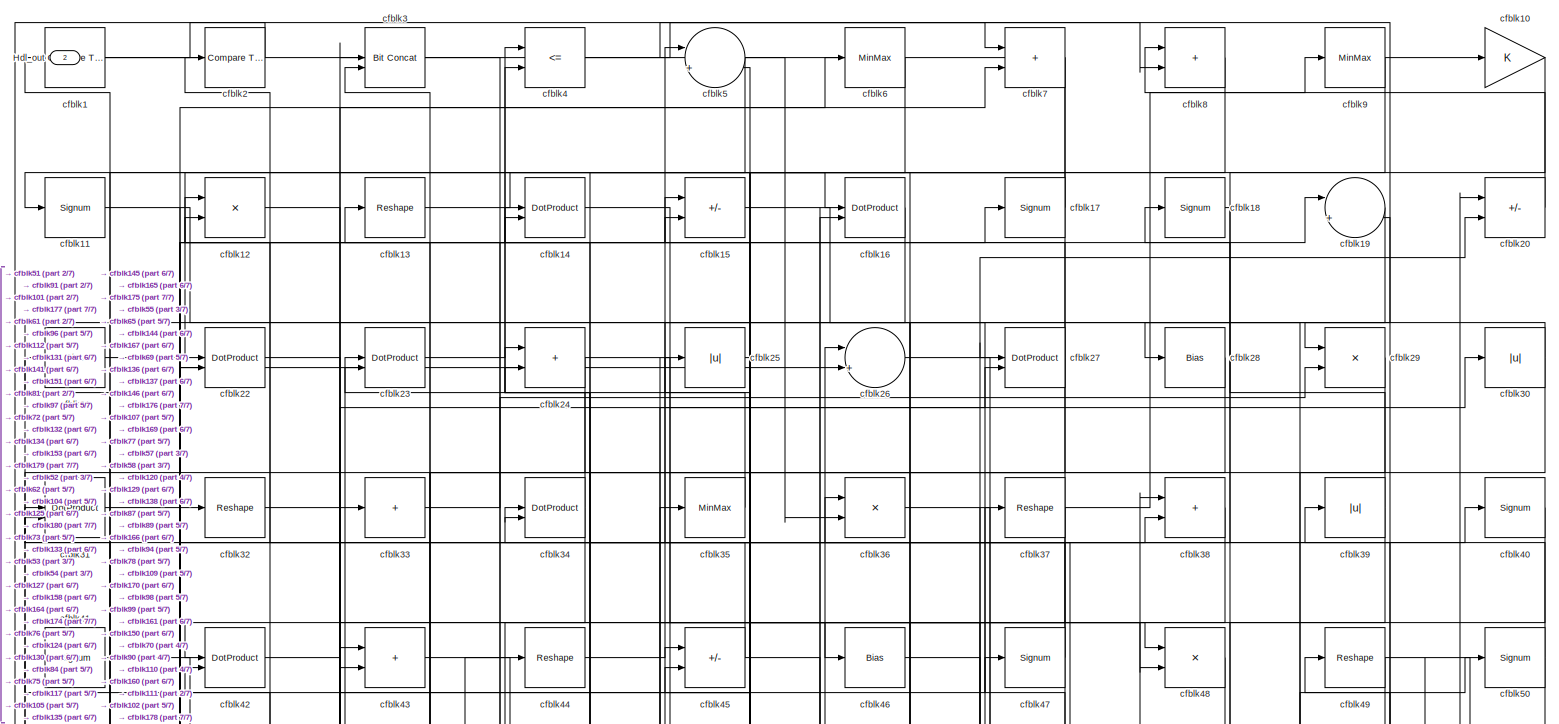
[diagram: root canvas - part 1/7, full width, top band]
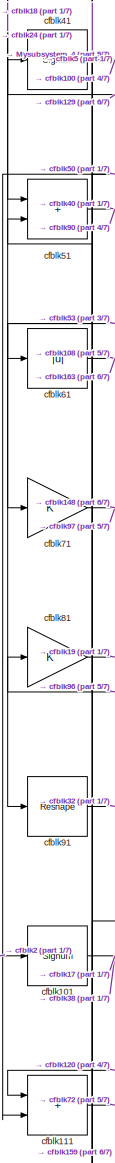
[diagram: root canvas - part 2/7, middle left region]
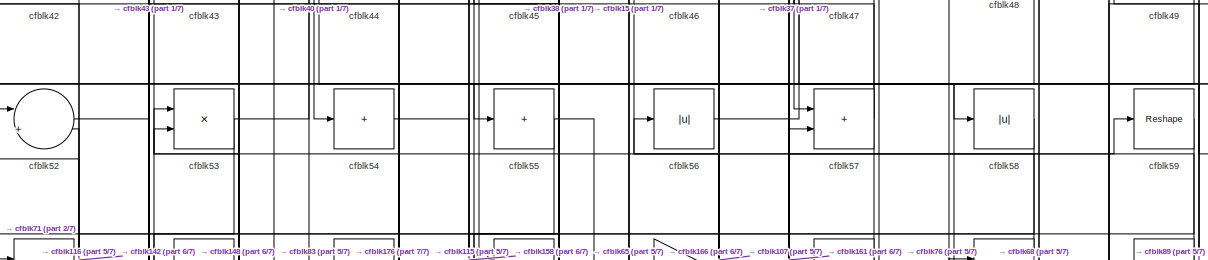
[diagram: root canvas - part 3/7, full width, top band]
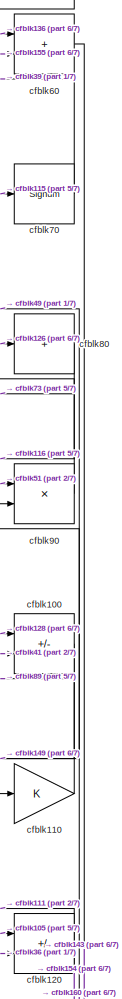
[diagram: root canvas - part 4/7, middle right region]
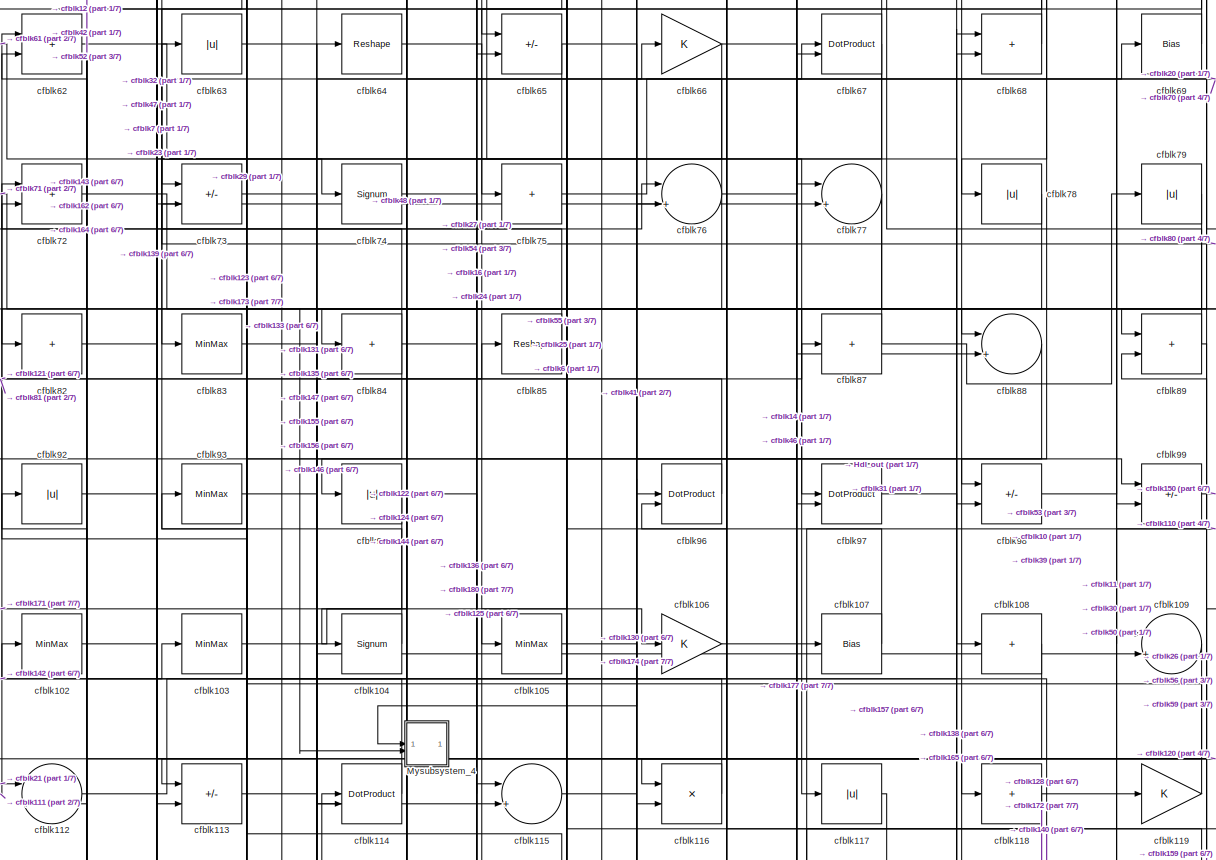
[diagram: root canvas - part 5/7, full width, middle band]
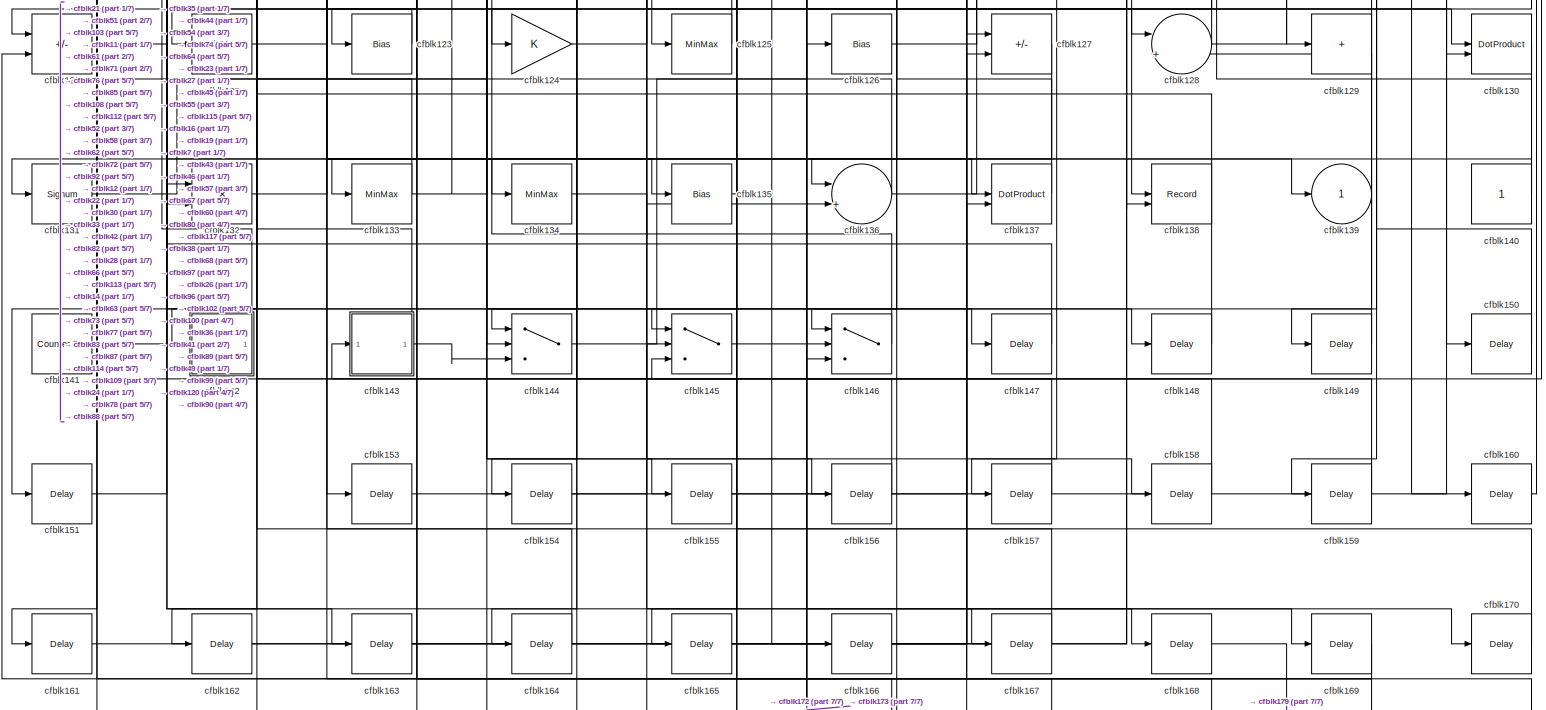
[diagram: root canvas - part 6/7, full width, bottom band]
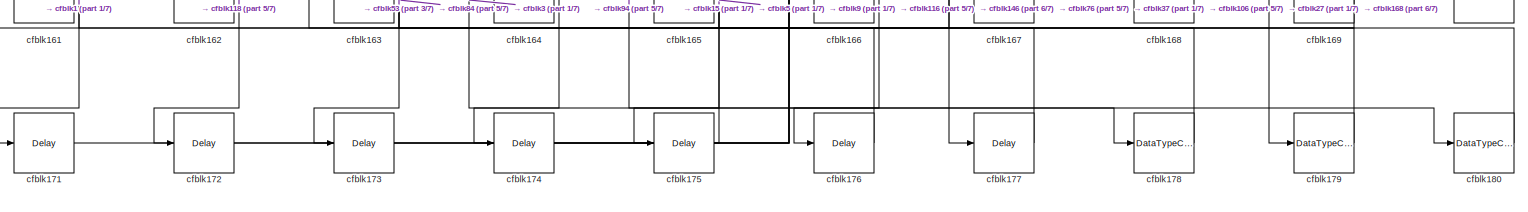
[diagram: root canvas - part 7/7, full width, bottom band]
MODEL slx_2e8391257bb7
KIND model
CONFIG AbsTol = auto
CONFIG EnableMultiTasking = off
CONFIG FixedStep = auto
CONFIG MaxStep = auto
CONFIG MinStep = auto
CONFIG RelTol = 1e-3
CONFIG SampleTimeConstraint = Unconstrained
CONFIG SolverName = VariableStepAuto
CONFIG StartTime = 0.0
CONFIG StopTime = 10.0
BLOCK [Outport] Hdl_out
  OutDataTypeStr = uint8
  Port = 2
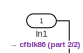
[diagram: Mysubsystem_4 - part 1/2, top right region]
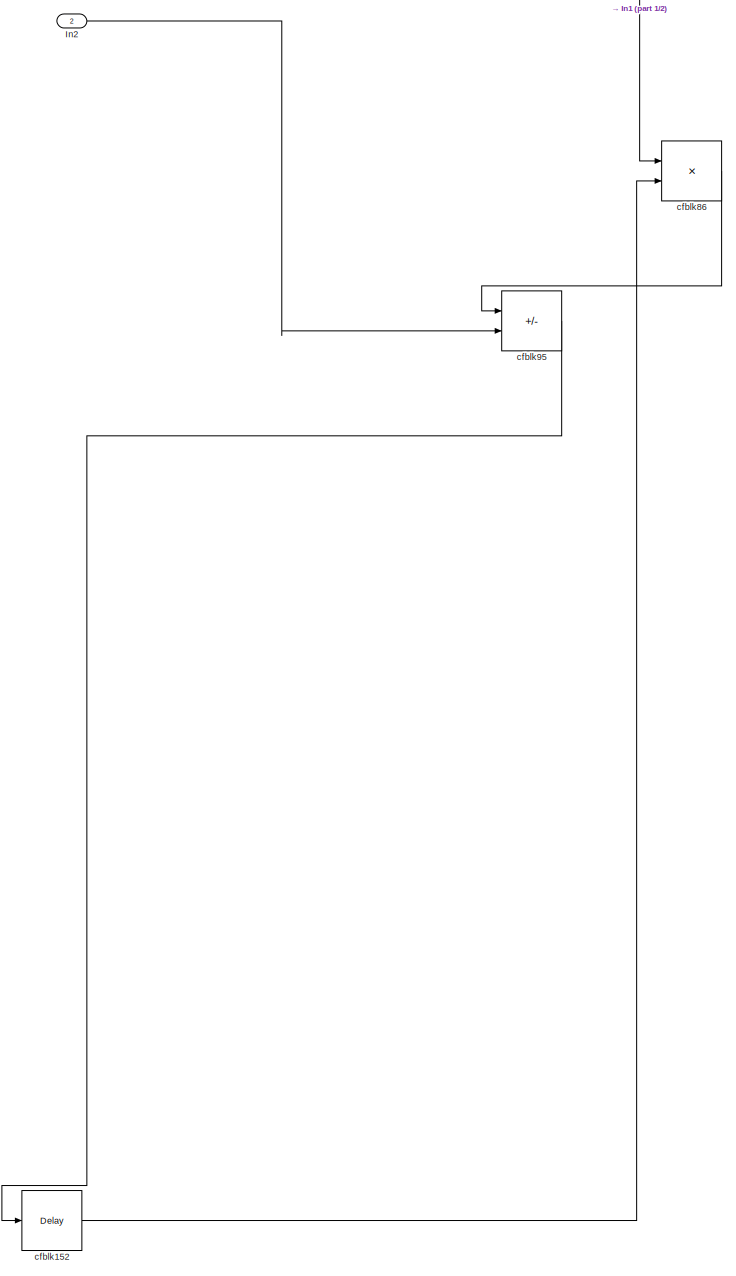
[diagram: Mysubsystem_4 - part 2/2, most of the canvas]
BLOCK [SubSystem] Mysubsystem_4
  RTWFcnName = Mysubsystem_4
  RTWFcnNameOpts = User specified
  RTWFileNameOpts = Use function name
  RTWSystemCode = Reusable function
  TreatAsAtomicUnit = on
BLOCK [Inport] Mysubsystem_4/In1
BLOCK [Inport] Mysubsystem_4/In2
  Port = 2
BLOCK [Delay] Mysubsystem_4/cfblk152
  InputPortMap = u0
  SampleTime = 1
BLOCK [Product] Mysubsystem_4/cfblk86
  Inputs = */
  RndMeth = Zero
  SaturateOnIntegerOverflow = on
BLOCK [Sum] Mysubsystem_4/cfblk95
  IconShape = rectangular
  Inputs = +-
BLOCK [Reference] cfblk1  REF=hdlsllib/Logic and Bit
Operations/Compare
To Zero
  SourceBlock = hdlsllib/Logic and Bit\nOperations/Compare\nTo Zero
  SourceType = Compare To Zero
BLOCK [Gain] cfblk10
  OutDataTypeStr = uint8
BLOCK [Sum] cfblk100
  IconShape = rectangular
  Inputs = +-
  OutDataTypeStr = uint8
BLOCK [Signum] cfblk101
BLOCK [MinMax] cfblk102
  OutDataTypeStr = uint8
BLOCK [MinMax] cfblk103
  OutDataTypeStr = uint8
BLOCK [Signum] cfblk104
BLOCK [MinMax] cfblk105
  OutDataTypeStr = uint8
BLOCK [Gain] cfblk106
  OutDataTypeStr = uint8
BLOCK [Bias] cfblk107
  Bias = 0.0
  SaturateOnIntegerOverflow = off
BLOCK [Sum] cfblk108
  IconShape = rectangular
  Inputs = +
  OutDataTypeStr = uint8
BLOCK [Sum] cfblk109
  Inputs = |++
  OutDataTypeStr = uint8
BLOCK [Signum] cfblk11
BLOCK [Gain] cfblk110
  OutDataTypeStr = uint8
BLOCK [Sum] cfblk111
  IconShape = rectangular
  OutDataTypeStr = uint8
BLOCK [Sum] cfblk112
  Inputs = |++
  OutDataTypeStr = uint8
BLOCK [Sum] cfblk113
  IconShape = rectangular
  Inputs = +-
  OutDataTypeStr = uint8
BLOCK [DotProduct] cfblk114
  OutDataTypeStr = uint8
BLOCK [Sum] cfblk115
  Inputs = |++
  OutDataTypeStr = uint8
BLOCK [Product] cfblk116
  Inputs = */
  OutDataTypeStr = uint8
  RndMeth = Zero
  SaturateOnIntegerOverflow = on
BLOCK [Abs] cfblk117
  OutDataTypeStr = uint8
  SaturateOnIntegerOverflow = off
BLOCK [Sum] cfblk118
  IconShape = rectangular
  Inputs = +
  OutDataTypeStr = uint8
BLOCK [Gain] cfblk119
  OutDataTypeStr = uint8
BLOCK [Product] cfblk12
  Inputs = */
  OutDataTypeStr = uint8
  RndMeth = Zero
  SaturateOnIntegerOverflow = on
BLOCK [Sum] cfblk120
  IconShape = rectangular
  Inputs = +-
  OutDataTypeStr = uint8
BLOCK [Sum] cfblk121
  IconShape = rectangular
  Inputs = +-
  OutDataTypeStr = uint8
BLOCK [MinMax] cfblk122
  OutDataTypeStr = uint8
BLOCK [Bias] cfblk123
  Bias = 0.0
  SaturateOnIntegerOverflow = off
BLOCK [Gain] cfblk124
  OutDataTypeStr = uint8
BLOCK [MinMax] cfblk125
  OutDataTypeStr = uint8
BLOCK [Bias] cfblk126
  Bias = 0.0
  SaturateOnIntegerOverflow = off
BLOCK [Sum] cfblk127
  IconShape = rectangular
  Inputs = +-
  OutDataTypeStr = uint8
BLOCK [Sum] cfblk128
  Inputs = |++
  OutDataTypeStr = uint8
BLOCK [Sum] cfblk129
  IconShape = rectangular
  Inputs = +
  OutDataTypeStr = uint8
BLOCK [Reshape] cfblk13
BLOCK [DotProduct] cfblk130
  OutDataTypeStr = uint8
BLOCK [Signum] cfblk131
BLOCK [Product] cfblk132
  Inputs = */
  OutDataTypeStr = uint8
  RndMeth = Zero
  SaturateOnIntegerOverflow = on
BLOCK [MinMax] cfblk133
  OutDataTypeStr = uint8
BLOCK [MinMax] cfblk134
  OutDataTypeStr = uint8
BLOCK [Bias] cfblk135
  Bias = 0.0
  SaturateOnIntegerOverflow = off
BLOCK [Sum] cfblk136
  Inputs = |++
  OutDataTypeStr = uint8
BLOCK [DotProduct] cfblk137
  OutDataTypeStr = uint8
BLOCK [Record] cfblk138
  CompatibilityTag = XY
  FileSettingsInternal = {"entries":[{"content":{"excelSettings":{"content":{},"type":"Streamout.ExcelSettings"}},"type":"Streamout.FileSettingStorage","uuid":""}],"packageUris":["http:\/\/schema.mathworks.com\/mf0\/streamout_blocks\/R2020a"],"version":"1.0"}
  Layout = [1 1]
  SignalsInternal = {"entries":[{"content":{"signals":[{"content":{"blockPath":[],"dimensions":[1],"domain":"","lineColor":"#a2142f","plots":[1],"port":1,"signalID":22258,"signalName":"cfblk26"},"type":"RecordBlkView.Signal","uuid":""},{"content":{"blockPath":[],"dimensions":[1],"domain":"","lineColor":"#139fff","plots":[1],"port":2,"signalID":22261,"signalName":"cfblk97"},"type":"RecordBlkView.Signal","uuid":""}]},"...<+142ch>
  VisualizationBindings = {"xyplotplugin":{"info":[{"series":[{"bindingParametersList":[{"parameter":"X-Axis","signalID":22258,"signalName":"cfblk26"},{"parameter":"Y-Axis","signalID":22261,"signalName":"cfblk97"}],"seriesID":46598}],"subplotID":1}]}}
  st = -1
BLOCK [Outport] cfblk139
  OutDataTypeStr = uint8
  VectorParamsAs1DForOutWhenUnconnected = off
BLOCK [DotProduct] cfblk14
  OutDataTypeStr = uint8
BLOCK [Constant] cfblk140
  OutDataTypeStr = uint8
  SampleTime = -1
BLOCK [Reference] cfblk141  REF=hdlsllib/Sources/Counter
Free-Running
  SourceBlock = hdlsllib/Sources/Counter\nFree-Running
  SourceType = Counter Free-Running
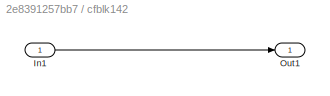
BLOCK [SubSystem] cfblk142
  LibrarySourceBlock = hdlsllib/Ports &\nSubsystems/Subsystem
BLOCK [Inport] cfblk142/In1
BLOCK [Outport] cfblk142/Out1
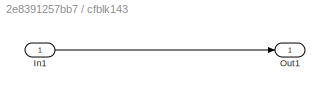
BLOCK [SubSystem] cfblk143
  LibrarySourceBlock = hdlsllib/Ports &\nSubsystems/Subsystem
BLOCK [Inport] cfblk143/In1
BLOCK [Outport] cfblk143/Out1
BLOCK [Switch] cfblk144
  InputSameDT = off
  OutDataTypeStr = uint8
  SaturateOnIntegerOverflow = off
BLOCK [Switch] cfblk145
  InputSameDT = off
  OutDataTypeStr = uint8
  SaturateOnIntegerOverflow = off
BLOCK [Switch] cfblk146
  InputSameDT = off
  OutDataTypeStr = uint8
  SaturateOnIntegerOverflow = off
BLOCK [Delay] cfblk147
  InputPortMap = u0
  SampleTime = 1
BLOCK [Delay] cfblk148
  InputPortMap = u0
  SampleTime = 1
BLOCK [Delay] cfblk149
  InputPortMap = u0
  SampleTime = 1
BLOCK [Sum] cfblk15
  IconShape = rectangular
  Inputs = +-
  OutDataTypeStr = uint8
BLOCK [Delay] cfblk150
  InputPortMap = u0
  SampleTime = 1
BLOCK [Delay] cfblk151
  InputPortMap = u0
  SampleTime = 1
BLOCK [Delay] cfblk153
  InputPortMap = u0
  SampleTime = 1
BLOCK [Delay] cfblk154
  InputPortMap = u0
  SampleTime = 1
BLOCK [Delay] cfblk155
  InputPortMap = u0
  SampleTime = 1
BLOCK [Delay] cfblk156
  InputPortMap = u0
  SampleTime = 1
BLOCK [Delay] cfblk157
  InputPortMap = u0
  SampleTime = 1
BLOCK [Delay] cfblk158
  InputPortMap = u0
  SampleTime = 1
BLOCK [Delay] cfblk159
  InputPortMap = u0
  SampleTime = 1
BLOCK [DotProduct] cfblk16
  OutDataTypeStr = uint8
BLOCK [Delay] cfblk160
  InputPortMap = u0
  SampleTime = 1
BLOCK [Delay] cfblk161
  InputPortMap = u0
  SampleTime = 1
BLOCK [Delay] cfblk162
  InputPortMap = u0
  SampleTime = 1
BLOCK [Delay] cfblk163
  InputPortMap = u0
  SampleTime = 1
BLOCK [Delay] cfblk164
  InputPortMap = u0
  SampleTime = 1
BLOCK [Delay] cfblk165
  InputPortMap = u0
  SampleTime = 1
BLOCK [Delay] cfblk166
  InputPortMap = u0
  SampleTime = 1
BLOCK [Delay] cfblk167
  InputPortMap = u0
  SampleTime = 1
BLOCK [Delay] cfblk168
  InputPortMap = u0
  SampleTime = 1
BLOCK [Delay] cfblk169
  InputPortMap = u0
  SampleTime = 1
BLOCK [Signum] cfblk17
BLOCK [Delay] cfblk170
  InputPortMap = u0
  SampleTime = 1
BLOCK [Delay] cfblk171
  InputPortMap = u0
  SampleTime = 1
BLOCK [Delay] cfblk172
  InputPortMap = u0
  SampleTime = 1
BLOCK [Delay] cfblk173
  InputPortMap = u0
  SampleTime = 1
BLOCK [Delay] cfblk174
  InputPortMap = u0
  SampleTime = 1
BLOCK [Delay] cfblk175
  InputPortMap = u0
  SampleTime = 1
BLOCK [Delay] cfblk176
  InputPortMap = u0
  SampleTime = 1
BLOCK [Delay] cfblk177
  InputPortMap = u0
  SampleTime = 1
BLOCK [DataTypeConversion] cfblk178
  OutDataTypeStr = uint8
  RndMeth = Floor
  SaturateOnIntegerOverflow = off
BLOCK [DataTypeConversion] cfblk179
  OutDataTypeStr = uint8
  RndMeth = Floor
  SaturateOnIntegerOverflow = off
BLOCK [Signum] cfblk18
BLOCK [DataTypeConversion] cfblk180
  OutDataTypeStr = uint8
  RndMeth = Floor
  SaturateOnIntegerOverflow = off
BLOCK [Sum] cfblk19
  Inputs = |++
  OutDataTypeStr = uint8
BLOCK [Reference] cfblk2  REF=hdlsllib/Logic and Bit
Operations/Compare
To Zero
  SourceBlock = hdlsllib/Logic and Bit\nOperations/Compare\nTo Zero
  SourceType = Compare To Zero
BLOCK [Sum] cfblk20
  IconShape = rectangular
  Inputs = +-
  OutDataTypeStr = uint8
BLOCK [Bias] cfblk21
  Bias = 0.0
  SaturateOnIntegerOverflow = off
BLOCK [DotProduct] cfblk22
  OutDataTypeStr = uint8
BLOCK [DotProduct] cfblk23
  OutDataTypeStr = uint8
BLOCK [Sum] cfblk24
  IconShape = rectangular
  OutDataTypeStr = uint8
BLOCK [Abs] cfblk25
  OutDataTypeStr = uint8
  SaturateOnIntegerOverflow = off
BLOCK [Sum] cfblk26
  Inputs = |++
  OutDataTypeStr = uint8
BLOCK [DotProduct] cfblk27
  OutDataTypeStr = uint8
BLOCK [Bias] cfblk28
  Bias = 0.0
  SaturateOnIntegerOverflow = off
BLOCK [Product] cfblk29
  Inputs = */
  OutDataTypeStr = uint8
  RndMeth = Zero
  SaturateOnIntegerOverflow = on
BLOCK [Reference] cfblk3  REF=hdlsllib/Logic and Bit
Operations/Bit Concat
  SourceBlock = hdlsllib/Logic and Bit\nOperations/Bit Concat
  SourceType = Bit Concat
BLOCK [Abs] cfblk30
  OutDataTypeStr = uint8
  SaturateOnIntegerOverflow = off
BLOCK [DotProduct] cfblk31
  OutDataTypeStr = uint8
BLOCK [Reshape] cfblk32
BLOCK [Sum] cfblk33
  IconShape = rectangular
  Inputs = +
  OutDataTypeStr = uint8
BLOCK [DotProduct] cfblk34
  OutDataTypeStr = uint8
BLOCK [MinMax] cfblk35
  OutDataTypeStr = uint8
BLOCK [Product] cfblk36
  Inputs = */
  OutDataTypeStr = uint8
  RndMeth = Zero
  SaturateOnIntegerOverflow = on
BLOCK [Reshape] cfblk37
BLOCK [Sum] cfblk38
  IconShape = rectangular
  OutDataTypeStr = uint8
BLOCK [Abs] cfblk39
  OutDataTypeStr = uint8
  SaturateOnIntegerOverflow = off
BLOCK [RelationalOperator] cfblk4
  InputSameDT = off
  Operator = <=
  OutDataTypeStr = boolean
BLOCK [Signum] cfblk40
BLOCK [Signum] cfblk41
BLOCK [DotProduct] cfblk42
  OutDataTypeStr = uint8
BLOCK [Sum] cfblk43
  IconShape = rectangular
  OutDataTypeStr = uint8
BLOCK [Reshape] cfblk44
BLOCK [Sum] cfblk45
  IconShape = rectangular
  Inputs = +-
  OutDataTypeStr = uint8
BLOCK [Bias] cfblk46
  Bias = 0.0
  SaturateOnIntegerOverflow = off
BLOCK [Signum] cfblk47
BLOCK [Product] cfblk48
  Inputs = */
  OutDataTypeStr = uint8
  RndMeth = Zero
  SaturateOnIntegerOverflow = on
BLOCK [Reshape] cfblk49
BLOCK [Sum] cfblk5
  Inputs = |++
  OutDataTypeStr = uint8
BLOCK [Signum] cfblk50
BLOCK [Sum] cfblk51
  IconShape = rectangular
  OutDataTypeStr = uint8
BLOCK [Sum] cfblk52
  Inputs = |++
  OutDataTypeStr = uint8
BLOCK [Product] cfblk53
  Inputs = */
  OutDataTypeStr = uint8
  RndMeth = Zero
  SaturateOnIntegerOverflow = on
BLOCK [Sum] cfblk54
  IconShape = rectangular
  Inputs = +
  OutDataTypeStr = uint8
BLOCK [Sum] cfblk55
  IconShape = rectangular
  Inputs = +
  OutDataTypeStr = uint8
BLOCK [Abs] cfblk56
  OutDataTypeStr = uint8
  SaturateOnIntegerOverflow = off
BLOCK [Sum] cfblk57
  IconShape = rectangular
  OutDataTypeStr = uint8
BLOCK [Abs] cfblk58
  OutDataTypeStr = uint8
  SaturateOnIntegerOverflow = off
BLOCK [Reshape] cfblk59
BLOCK [MinMax] cfblk6
  OutDataTypeStr = uint8
BLOCK [Sum] cfblk60
  IconShape = rectangular
  OutDataTypeStr = uint8
BLOCK [Abs] cfblk61
  OutDataTypeStr = uint8
  SaturateOnIntegerOverflow = off
BLOCK [Sum] cfblk62
  IconShape = rectangular
  OutDataTypeStr = uint8
BLOCK [Abs] cfblk63
  OutDataTypeStr = uint8
  SaturateOnIntegerOverflow = off
BLOCK [Reshape] cfblk64
BLOCK [Sum] cfblk65
  IconShape = rectangular
  Inputs = +-
  OutDataTypeStr = uint8
BLOCK [Gain] cfblk66
  OutDataTypeStr = uint8
BLOCK [DotProduct] cfblk67
  OutDataTypeStr = uint8
BLOCK [Sum] cfblk68
  IconShape = rectangular
  OutDataTypeStr = uint8
BLOCK [Bias] cfblk69
  Bias = 0.0
  SaturateOnIntegerOverflow = off
BLOCK [Sum] cfblk7
  IconShape = rectangular
  OutDataTypeStr = uint8
BLOCK [Signum] cfblk70
BLOCK [Gain] cfblk71
  OutDataTypeStr = uint8
BLOCK [Sum] cfblk72
  IconShape = rectangular
  OutDataTypeStr = uint8
BLOCK [Sum] cfblk73
  IconShape = rectangular
  Inputs = +-
  OutDataTypeStr = uint8
BLOCK [Signum] cfblk74
BLOCK [Sum] cfblk75
  IconShape = rectangular
  Inputs = +
  OutDataTypeStr = uint8
BLOCK [Sum] cfblk76
  Inputs = |++
  OutDataTypeStr = uint8
BLOCK [Sum] cfblk77
  Inputs = |++
  OutDataTypeStr = uint8
BLOCK [Abs] cfblk78
  OutDataTypeStr = uint8
  SaturateOnIntegerOverflow = off
BLOCK [Abs] cfblk79
  OutDataTypeStr = uint8
  SaturateOnIntegerOverflow = off
BLOCK [Sum] cfblk8
  IconShape = rectangular
  OutDataTypeStr = uint8
BLOCK [Sum] cfblk80
  IconShape = rectangular
  Inputs = +
  OutDataTypeStr = uint8
BLOCK [Gain] cfblk81
  OutDataTypeStr = uint8
BLOCK [Sum] cfblk82
  IconShape = rectangular
  Inputs = +
  OutDataTypeStr = uint8
BLOCK [MinMax] cfblk83
  OutDataTypeStr = uint8
BLOCK [Sum] cfblk84
  IconShape = rectangular
  Inputs = +
  OutDataTypeStr = uint8
BLOCK [Reshape] cfblk85
BLOCK [Sum] cfblk87
  IconShape = rectangular
  Inputs = +
  OutDataTypeStr = uint8
BLOCK [Sum] cfblk88
  Inputs = |++
  OutDataTypeStr = uint8
BLOCK [Sum] cfblk89
  IconShape = rectangular
  OutDataTypeStr = uint8
BLOCK [MinMax] cfblk9
  OutDataTypeStr = uint8
BLOCK [Product] cfblk90
  Inputs = */
  OutDataTypeStr = uint8
  RndMeth = Zero
  SaturateOnIntegerOverflow = on
BLOCK [Reshape] cfblk91
BLOCK [Abs] cfblk92
  OutDataTypeStr = uint8
  SaturateOnIntegerOverflow = off
BLOCK [MinMax] cfblk93
  OutDataTypeStr = uint8
BLOCK [Abs] cfblk94
  OutDataTypeStr = uint8
  SaturateOnIntegerOverflow = off
BLOCK [DotProduct] cfblk96
  OutDataTypeStr = uint8
BLOCK [DotProduct] cfblk97
  OutDataTypeStr = uint8
BLOCK [Sum] cfblk98
  IconShape = rectangular
  Inputs = +-
  OutDataTypeStr = uint8
BLOCK [Sum] cfblk99
  IconShape = rectangular
  Inputs = +-
  OutDataTypeStr = uint8
LINE Mysubsystem_4/In1:1 -> Mysubsystem_4/cfblk86:1
LINE Mysubsystem_4/In2:1 -> Mysubsystem_4/cfblk95:2
LINE Mysubsystem_4/cfblk152:1 -> Mysubsystem_4/cfblk86:2
LINE Mysubsystem_4/cfblk86:1 -> Mysubsystem_4/cfblk95:1
LINE Mysubsystem_4/cfblk95:1 -> Mysubsystem_4/cfblk152:1
LINE cfblk100:1 -> cfblk149:1
NET cfblk101:1 -> cfblk17:1, cfblk38:2
NET cfblk102:1 -> cfblk114:2, cfblk7:2
LINE cfblk103:1 -> cfblk106:1
LINE cfblk104:1 -> cfblk23:1
LINE cfblk105:1 -> cfblk120:1
LINE cfblk106:1 -> cfblk177:1
NET cfblk107:1 -> cfblk25:1, cfblk56:1
LINE cfblk108:1 -> cfblk162:1
LINE cfblk109:1 -> cfblk144:1
LINE cfblk10:1 -> cfblk78:1
LINE cfblk110:1 -> cfblk89:2
LINE cfblk111:1 -> cfblk72:1
LINE cfblk112:1 -> cfblk68:1
NET cfblk113:1 -> cfblk109:2, cfblk135:1
LINE cfblk114:1 -> cfblk62:1
NET cfblk115:1 -> cfblk130:2, cfblk70:1
LINE cfblk116:1 -> cfblk52:1
LINE cfblk117:1 -> cfblk157:1
NET cfblk118:1 -> cfblk119:1, cfblk172:1
LINE cfblk119:1 -> cfblk93:1
NET cfblk11:1 -> cfblk109:1, cfblk170:1
NET cfblk120:1 -> cfblk111:1, cfblk154:1
NET cfblk121:1 -> cfblk76:1, cfblk85:1
LINE cfblk122:1 -> cfblk128:1
LINE cfblk123:1 -> cfblk121:1
LINE cfblk124:1 -> cfblk35:1
LINE cfblk125:1 -> cfblk23:2
LINE cfblk126:1 -> cfblk80:1
LINE cfblk127:1 -> cfblk132:2
NET cfblk128:1 -> cfblk100:1, cfblk96:2
NET cfblk129:1 -> cfblk151:1, cfblk41:1
NET cfblk12:1 -> cfblk134:1, cfblk46:1
LINE cfblk130:1 -> cfblk131:1
NET cfblk131:1 -> cfblk14:2, cfblk64:1
NET cfblk132:1 -> cfblk30:1, cfblk33:1
NET cfblk133:1 -> cfblk21:1, cfblk44:1, cfblk87:1
LINE cfblk134:1 -> cfblk168:1
LINE cfblk135:1 -> cfblk45:2
NET cfblk136:1 -> cfblk60:1, cfblk72:2
LINE cfblk137:1 -> cfblk36:1
LINE cfblk13:1 -> cfblk16:1
LINE cfblk140:1 -> cfblk102:1
LINE cfblk141:1 -> cfblk26:2
LINE cfblk142/In1:1 -> cfblk142/Out1:1
LINE cfblk142:1 -> cfblk103:1
LINE cfblk143/In1:1 -> cfblk143/Out1:1
NET cfblk143:1 -> cfblk144:3, cfblk92:1
LINE cfblk144:1 -> cfblk16:2
LINE cfblk145:1 -> cfblk126:1
LINE cfblk146:1 -> cfblk114:1
LINE cfblk147:1 -> cfblk132:1
LINE cfblk148:1 -> cfblk52:2
LINE cfblk149:1 -> cfblk128:2
LINE cfblk14:1 -> cfblk77:1
LINE cfblk150:1 -> cfblk19:2
LINE cfblk151:1 -> cfblk22:2
LINE cfblk153:1 -> cfblk145:2
LINE cfblk154:1 -> cfblk137:2
LINE cfblk155:1 -> cfblk60:2
LINE cfblk156:1 -> cfblk96:1
LINE cfblk157:1 -> cfblk62:2
LINE cfblk158:1 -> cfblk24:2
LINE cfblk159:1 -> cfblk51:2
NET cfblk15:1 -> cfblk57:1, cfblk58:1
LINE cfblk160:1 -> cfblk90:2
LINE cfblk161:1 -> cfblk57:2
LINE cfblk162:1 -> cfblk67:2
LINE cfblk163:1 -> cfblk127:2
LINE cfblk164:1 -> cfblk112:2
LINE cfblk165:1 -> cfblk68:2
LINE cfblk166:1 -> cfblk38:1
LINE cfblk167:1 -> cfblk43:1
LINE cfblk168:1 -> cfblk179:1
LINE cfblk169:1 -> cfblk121:2
LINE cfblk16:1 -> cfblk75:1
LINE cfblk170:1 -> cfblk145:3
LINE cfblk171:1 -> cfblk76:2
LINE cfblk172:1 -> cfblk146:3
LINE cfblk173:1 -> cfblk146:2
LINE cfblk174:1 -> cfblk116:2
LINE cfblk175:1 -> cfblk15:2
LINE cfblk176:1 -> cfblk53:2
LINE cfblk177:1 -> cfblk1:1
NET cfblk178:1 -> cfblk27:1, cfblk5:2
LINE cfblk179:1 -> cfblk3:1
LINE cfblk17:1 -> cfblk11:1
LINE cfblk180:1 -> cfblk3:2
LINE cfblk18:1 -> cfblk91:1
LINE cfblk19:1 -> cfblk146:1
LINE cfblk1:1 -> cfblk7:1
LINE cfblk20:1 -> cfblk8:1
NET cfblk21:1 -> cfblk112:1, cfblk6:1
LINE cfblk22:1 -> cfblk137:1
LINE cfblk23:1 -> cfblk4:2
NET cfblk24:1 -> cfblk117:1, cfblk48:2, cfblk51:1
LINE cfblk25:1 -> cfblk105:1
NET cfblk26:1 -> cfblk138:1, cfblk20:2
NET cfblk27:1 -> cfblk164:1, cfblk165:1, cfblk2:1
LINE cfblk28:1 -> cfblk133:1
LINE cfblk29:1 -> cfblk73:1
LINE cfblk2:1 -> cfblk101:1
NET cfblk30:1 -> cfblk28:1, cfblk99:2
LINE cfblk31:1 -> cfblk97:2
LINE cfblk32:1 -> cfblk77:2
LINE cfblk33:1 -> cfblk29:2
NET cfblk34:1 -> cfblk42:1, cfblk4:1
LINE cfblk35:1 -> cfblk13:1
NET cfblk36:1 -> cfblk120:2, cfblk129:1
NET cfblk37:1 -> cfblk176:1, cfblk9:1
LINE cfblk38:1 -> cfblk55:1
NET cfblk39:1 -> cfblk18:1, cfblk98:1
LINE cfblk3:1 -> cfblk178:1
LINE cfblk40:1 -> cfblk54:1
NET cfblk41:1 -> Mysubsystem_4:1, cfblk100:2
LINE cfblk42:1 -> cfblk153:1
LINE cfblk43:1 -> cfblk127:1
NET cfblk44:1 -> cfblk130:1, cfblk45:1, cfblk48:1
NET cfblk45:1 -> cfblk12:1, cfblk167:1
NET cfblk46:1 -> cfblk107:1, cfblk169:1
NET cfblk47:1 -> cfblk14:1, cfblk5:1
LINE cfblk48:1 -> cfblk94:1
NET cfblk49:1 -> cfblk110:1, cfblk160:1, cfblk161:1
NET cfblk4:1 -> cfblk29:1, cfblk8:2
NET cfblk50:1 -> cfblk111:2, cfblk34:1, cfblk34:2
NET cfblk51:1 -> cfblk40:1, cfblk90:1
LINE cfblk52:1 -> cfblk43:2
NET cfblk53:1 -> cfblk15:1, cfblk71:1
NET cfblk54:1 -> cfblk115:1, cfblk158:1
NET cfblk55:1 -> cfblk166:1, cfblk65:2
LINE cfblk56:1 -> cfblk89:1
LINE cfblk57:1 -> cfblk37:1
LINE cfblk58:1 -> cfblk142:1
LINE cfblk59:1 -> cfblk83:1
NET cfblk5:1 -> cfblk36:2, cfblk61:1
LINE cfblk60:1 -> cfblk143:1
NET cfblk61:1 -> cfblk108:1, cfblk163:1
NET cfblk62:1 -> cfblk47:1, cfblk74:1
LINE cfblk63:1 -> cfblk155:1
LINE cfblk64:1 -> cfblk125:1
NET cfblk65:1 -> cfblk113:2, cfblk98:2
NET cfblk66:1 -> cfblk123:1, cfblk88:2
LINE cfblk67:1 -> cfblk84:1
LINE cfblk68:1 -> cfblk53:1
LINE cfblk69:1 -> cfblk26:1
LINE cfblk6:1 -> cfblk65:1
LINE cfblk70:1 -> cfblk39:1
NET cfblk71:1 -> cfblk148:1, cfblk97:1
NET cfblk72:1 -> Mysubsystem_4:2, cfblk42:2
LINE cfblk73:1 -> cfblk147:1
NET cfblk74:1 -> cfblk136:2, cfblk99:1
LINE cfblk75:1 -> cfblk20:1
NET cfblk76:1 -> cfblk113:1, cfblk24:1, cfblk59:1, cfblk69:1
LINE cfblk77:1 -> cfblk144:2
LINE cfblk78:1 -> cfblk122:1
LINE cfblk79:1 -> cfblk104:1
NET cfblk7:1 -> cfblk136:1, cfblk145:1
NET cfblk80:1 -> cfblk116:1, cfblk73:2
LINE cfblk81:1 -> cfblk19:1
LINE cfblk82:1 -> cfblk139:1
NET cfblk83:1 -> cfblk156:1, cfblk88:1
NET cfblk84:1 -> cfblk118:1, cfblk12:2, cfblk173:1, cfblk27:2
LINE cfblk85:1 -> cfblk63:1
NET cfblk87:1 -> Hdl_out:1, cfblk79:1
LINE cfblk88:1 -> cfblk124:1
NET cfblk89:1 -> cfblk159:1, cfblk31:2, cfblk82:1
LINE cfblk8:1 -> cfblk22:1
LINE cfblk90:1 -> cfblk49:1
LINE cfblk91:1 -> cfblk32:1
LINE cfblk92:1 -> cfblk67:1
NET cfblk93:1 -> cfblk115:2, cfblk66:1
NET cfblk94:1 -> cfblk171:1, cfblk180:1
NET cfblk96:1 -> cfblk31:1, cfblk81:1
LINE cfblk97:1 -> cfblk138:2
LINE cfblk98:1 -> cfblk50:1
LINE cfblk99:1 -> cfblk150:1
NET cfblk9:1 -> cfblk10:1, cfblk174:1, cfblk175:1
note: NET lines group one-source signal fan-out (src -> all destinations, sorted); 1:1 wires keep LINE
